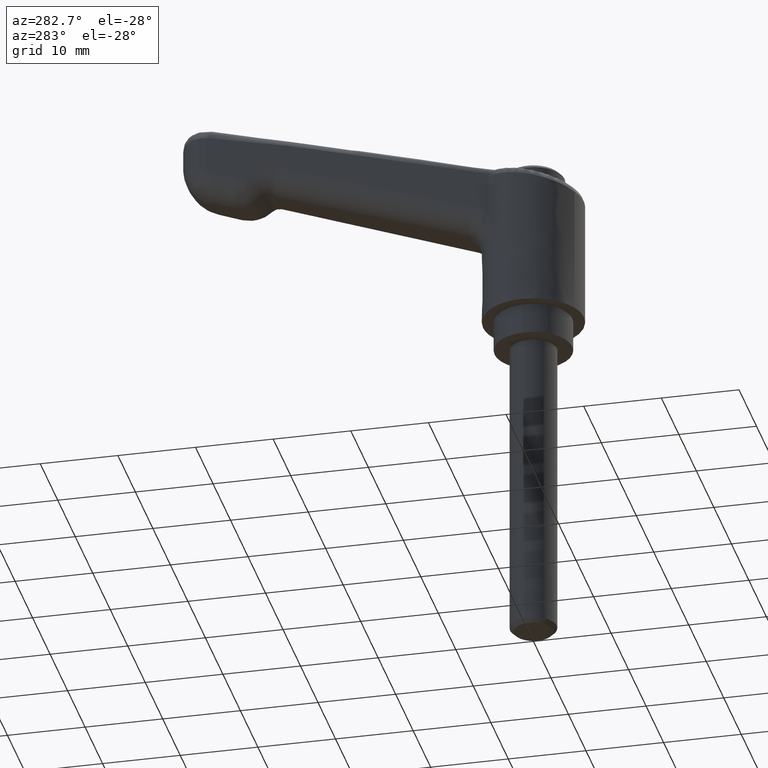
[diagram: clean part render]
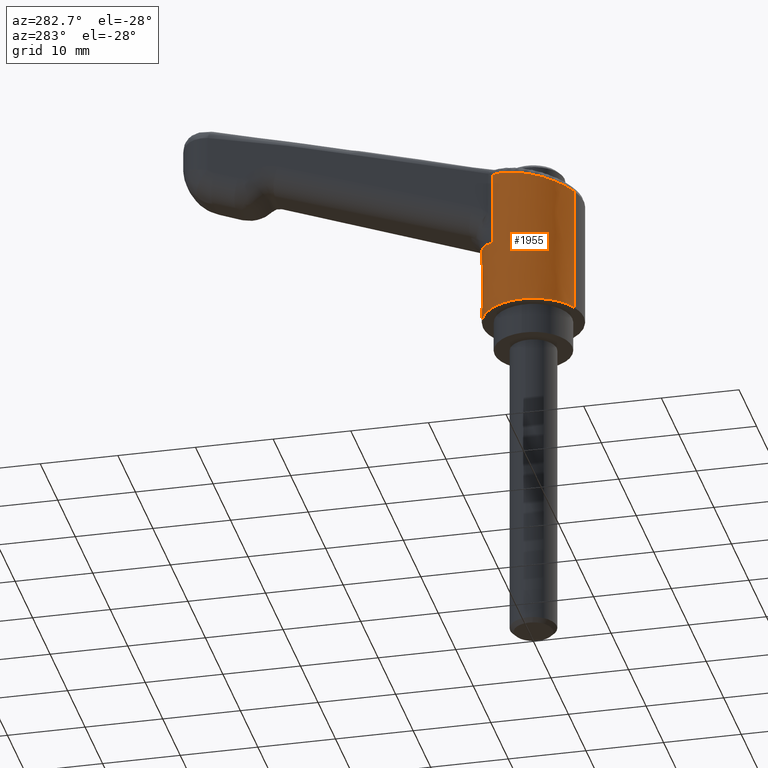
[diagram: same view with one face highlighted and labeled with its STEP entity id]
A machine part, auxiliary view. The second image highlights one B-rep face of the part: STEP entity #1955.
In plain terms, the highlighted face is a freeform B-spline surface patch.
Its self-contained STEP definition (entity closure, byte-faithful):
#1812=CARTESIAN_POINT('',(-5.914748260697529,2.695506077265552,23.400783769491071));
#1813=CARTESIAN_POINT('',(-3.219242183431977,8.610254337963081,23.400783769491078));
#1814=CARTESIAN_POINT('',(2.695506077265552,5.914748260697529,23.400783769491071));
#1815=CARTESIAN_POINT('',(8.610254337963081,3.219242183431977,23.400783769491078));
#1816=CARTESIAN_POINT('',(5.914748260697529,-2.695506077265552,23.400783769491071));
#1817=CARTESIAN_POINT('',(3.219242183431977,-8.610254337963081,23.400783769491078));
#1818=CARTESIAN_POINT('',(-2.695506077265552,-5.914748260697529,23.400783769491071));
#1819=CARTESIAN_POINT('',(-5.914748260697529,2.695506077265552,3.514980405762724));
#1820=CARTESIAN_POINT('',(-3.219242183431977,8.610254337963081,3.514980405762724));
#1821=CARTESIAN_POINT('',(2.695506077265552,5.914748260697529,3.514980405762724));
#1822=CARTESIAN_POINT('',(8.610254337963081,3.219242183431977,3.514980405762724));
#1823=CARTESIAN_POINT('',(5.914748260697529,-2.695506077265552,3.514980405762724));
#1824=CARTESIAN_POINT('',(3.219242183431977,-8.610254337963081,3.514980405762724));
#1825=CARTESIAN_POINT('',(-2.695506077265552,-5.914748260697529,3.514980405762724));
#1833=(BOUNDED_SURFACE()B_SPLINE_SURFACE(2,1,((#1812,#1819),(#1813,#1820),(#1814,#1821),(#1815,#1822),(#1816,#1823),(#1817,#1824),(#1818,#1825)),.UNSPECIFIED.,.F.,.F.,.U.)B_SPLINE_SURFACE_WITH_KNOTS((3,2,2,3),(2,2),(0.0,10.769552621700470,21.539105243400940,32.308657865101402),(0.0,19.885803363728350),.UNSPECIFIED.)GEOMETRIC_REPRESENTATION_ITEM()RATIONAL_B_SPLINE_SURFACE(((1.0,1.0),(0.707106781186548,0.707106781186548),(1.0,1.0),(0.707106781186548,0.707106781186548),(1.0,1.0),(0.707106781186548,0.707106781186548),(1.0,1.0)))REPRESENTATION_ITEM('')SURFACE());
#1834=CARTESIAN_POINT('',(-5.914549377455127,2.695415402290960,20.523462329197411));
#1835=VERTEX_POINT('',#1834);
#1836=CARTESIAN_POINT('',(4.181284398144875,4.976631469360600,22.927593921454701));
#1837=VERTEX_POINT('',#1836);
#1838=CARTESIAN_POINT('',(-5.914549377455127,2.695415402290960,20.523462329197411));
#1839=CARTESIAN_POINT('',(-5.767468709994789,3.018050032681049,20.558262812087339));
#1840=CARTESIAN_POINT('',(-5.301182019287443,3.853651795714690,20.668779228307841));
#1841=CARTESIAN_POINT('',(-4.206732189440376,5.079375608178806,20.933532965407728));
#1842=CARTESIAN_POINT('',(-2.814015380585587,5.926542746467091,21.256792115043400));
#1843=CARTESIAN_POINT('',(-0.987577848334026,6.523199363515083,21.711266700937738));
#1844=CARTESIAN_POINT('',(0.518911485796681,6.562515029084429,22.054976047597659));
#1845=CARTESIAN_POINT('',(1.794250847008617,6.257449203859983,22.359249025548280));
#1846=CARTESIAN_POINT('',(2.343493232298454,6.072421653768368,22.489192580688979));
#1847=CARTESIAN_POINT('',(2.848927994721092,5.851381513394752,22.609173933573960));
#1848=CARTESIAN_POINT('',(3.310269182823885,5.602640677292396,22.719054847962759));
#1849=CARTESIAN_POINT('',(3.726997584483854,5.332975164673110,22.818718920146711));
#1850=CARTESIAN_POINT('',(4.011130285577574,5.119872786720974,22.886882436381779));
#1851=CARTESIAN_POINT('',(4.156138781201793,4.998073743425447,22.921579422721091));
#1852=CARTESIAN_POINT('',(4.181284398144875,4.976631469360600,22.927593921454701));
#1853=B_SPLINE_CURVE_WITH_KNOTS('',3,(#1838,#1839,#1840,#1841,#1842,#1843,#1844,#1845,#1846,#1847,#1848,#1849,#1850,#1851,#1852),.UNSPECIFIED.,.F.,.U.,(4,1,1,1,1,1,1,1,1,1,1,1,4),(0.590929746980573,0.625689573868113,0.684593177289269,0.752063985464612,0.785550837866162,0.877717810244562,0.898032705466529,0.917397459694434,0.935812799731019,0.953279587977761,0.969798852578575,0.985371826641243,0.988662854138937),.UNSPECIFIED.);
#1854=EDGE_CURVE('',#1835,#1837,#1853,.T.);
#1855=ORIENTED_EDGE('',*,*,#1854,.T.);
#1856=CARTESIAN_POINT('',(4.181284398144875,4.976631469360600,13.157700573101801));
#1857=VERTEX_POINT('',#1856);
#1858=CARTESIAN_POINT('',(4.181284398144875,4.976631469360600,22.927593921454701));
#1859=CARTESIAN_POINT('',(4.181284398144875,4.976631469360600,13.157700573101801));
#1860=QUASI_UNIFORM_CURVE('',1,(#1858,#1859),.UNSPECIFIED.,.F.,.U.);
#1861=EDGE_CURVE('',#1837,#1857,#1860,.T.);
#1862=ORIENTED_EDGE('',*,*,#1861,.T.);
#1863=CARTESIAN_POINT('',(4.181284398144875,-4.976631469360600,13.157700573101801));
#1864=VERTEX_POINT('',#1863);
#1865=CARTESIAN_POINT('',(4.181284398144868,4.976631469360603,13.157700573101810));
#1866=CARTESIAN_POINT('',(6.499999999999996,3.028484529113573,14.224243801016479));
#1867=CARTESIAN_POINT('',(6.499999999999996,7.959941E-016,14.224243801016479));
#1868=CARTESIAN_POINT('',(6.499999999999996,-3.028484529113571,14.224243801016479));
#1869=CARTESIAN_POINT('',(4.181284398144872,-4.976631469360600,13.157700573101820));
#1877=(BOUNDED_CURVE()B_SPLINE_CURVE(2,(#1865,#1866,#1867,#1868,#1869),.UNSPECIFIED.,.F.,.U.)B_SPLINE_CURVE_WITH_KNOTS((3,2,3),(0.0,0.500000000000000,1.0),.UNSPECIFIED.)CURVE()GEOMETRIC_REPRESENTATION_ITEM()RATIONAL_B_SPLINE_CURVE((1.0,0.906442089377892,1.0,0.906442089377892,1.0))REPRESENTATION_ITEM(''));
#1878=EDGE_CURVE('',#1857,#1864,#1877,.T.);
#1879=ORIENTED_EDGE('',*,*,#1878,.T.);
#1880=CARTESIAN_POINT('',(4.181284398144875,-4.976631469360600,22.927593525127300));
#1881=VERTEX_POINT('',#1880);
#1882=CARTESIAN_POINT('',(4.181284398144875,-4.976631469360600,13.157700573101801));
#1883=CARTESIAN_POINT('',(4.181284398144875,-4.976631469360600,22.927593525127300));
#1884=QUASI_UNIFORM_CURVE('',1,(#1882,#1883),.UNSPECIFIED.,.F.,.U.);
#1885=EDGE_CURVE('',#1864,#1881,#1884,.T.);
#1886=ORIENTED_EDGE('',*,*,#1885,.T.);
#1887=CARTESIAN_POINT('',(-2.695512476938378,-5.914765310525878,21.289380024952852));
#1888=VERTEX_POINT('',#1887);
#1889=CARTESIAN_POINT('',(4.181284398144875,-4.976631469360600,22.927593525127300));
#1890=CARTESIAN_POINT('',(4.090702154850265,-5.053378178435955,22.905918263791008));
#1891=CARTESIAN_POINT('',(3.899519846976026,-5.204324874394157,22.860066988614602));
#1892=CARTESIAN_POINT('',(3.594591174289756,-5.420201626950793,22.787021189177679));
#1893=CARTESIAN_POINT('',(3.262692235999267,-5.626525155900386,22.707703611908940));
#1894=CARTESIAN_POINT('',(2.904133393788352,-5.820130650837180,22.622292078117450));
#1895=CARTESIAN_POINT('',(2.518726046743061,-5.997385070868498,22.530765628883099));
#1896=CARTESIAN_POINT('',(2.106811796597528,-6.154602889495299,22.433105206278402));
#1897=CARTESIAN_POINT('',(1.668916739738379,-6.287865385909345,22.329412402823650));
#1898=CARTESIAN_POINT('',(0.704775469981378,-6.507636025443151,22.099640482222139));
#1899=CARTESIAN_POINT('',(-0.573019085534677,-6.546654325501651,21.802538539095629));
#1900=CARTESIAN_POINT('',(-1.801454585564106,-6.266555267962660,21.510999240540912));
#1901=CARTESIAN_POINT('',(-2.411559984368332,-6.039669353817590,21.357719162218459));
#1902=CARTESIAN_POINT('',(-2.625726030908051,-5.946577705503771,21.306060068367412));
#1903=CARTESIAN_POINT('',(-2.695512476938378,-5.914765310525878,21.289380024952852));
#1904=B_SPLINE_CURVE_WITH_KNOTS('',3,(#1889,#1890,#1891,#1892,#1893,#1894,#1895,#1896,#1897,#1898,#1899,#1900,#1901,#1902,#1903),.UNSPECIFIED.,.F.,.U.,(4,1,1,1,1,1,1,1,1,1,1,1,4),(0.011339002814821,0.023162408093432,0.035602075254132,0.048614959416363,0.062201629669727,0.076362582625634,0.091098253527881,0.106409025298450,0.122295235960681,0.190526883254455,0.232580987687207,0.248311673399157,0.255996111147750),.UNSPECIFIED.);
#1905=EDGE_CURVE('',#1881,#1888,#1904,.T.);
#1906=ORIENTED_EDGE('',*,*,#1905,.T.);
#1907=CARTESIAN_POINT('',(-2.695506077277886,-5.914748260691910,4.0));
#1908=VERTEX_POINT('',#1907);
#1909=CARTESIAN_POINT('',(-2.695512476938378,-5.914765310525878,21.289380024952852));
#1910=CARTESIAN_POINT('',(-2.695506077277886,-5.914748260691910,4.0));
#1911=QUASI_UNIFORM_CURVE('',1,(#1909,#1910),.UNSPECIFIED.,.F.,.U.);
#1912=EDGE_CURVE('',#1888,#1908,#1911,.T.);
#1913=ORIENTED_EDGE('',*,*,#1912,.T.);
#1914=CARTESIAN_POINT('',(6.500000000000000,0.0,4.0));
#1915=VERTEX_POINT('',#1914);
#1916=CARTESIAN_POINT('',(-2.695506077277886,-5.914748260691910,4.0));
#1917=CARTESIAN_POINT('',(-1.411288343064467,-6.500000000000000,4.0));
#1918=CARTESIAN_POINT('',(0.0,-6.500000000000000,4.0));
#1919=CARTESIAN_POINT('',(6.500000000000000,-6.500000000000000,4.0));
#1920=CARTESIAN_POINT('',(6.500000000000000,0.0,4.0));
#1928=(BOUNDED_CURVE()B_SPLINE_CURVE(2,(#1916,#1917,#1918,#1919,#1920),.UNSPECIFIED.,.F.,.U.)B_SPLINE_CURVE_WITH_KNOTS((3,2,3),(0.179570116083883,0.250000000000000,0.500000000000000),.UNSPECIFIED.)CURVE()GEOMETRIC_REPRESENTATION_ITEM()RATIONAL_B_SPLINE_CURVE((0.881463982734100,0.917486258396603,1.0,0.707106781186547,1.0))REPRESENTATION_ITEM(''));
#1929=EDGE_CURVE('',#1908,#1915,#1928,.T.);
#1930=ORIENTED_EDGE('',*,*,#1929,.T.);
#1931=CARTESIAN_POINT('',(-5.914750474327626,2.695501219887058,4.0));
#1932=VERTEX_POINT('',#1931);
#1933=CARTESIAN_POINT('',(6.500000000000000,0.0,4.0));
#1934=CARTESIAN_POINT('',(6.500000000000000,6.500000000000000,4.0));
#1935=CARTESIAN_POINT('',(0.0,6.500000000000000,4.0));
#1936=CARTESIAN_POINT('',(-4.180944264353101,6.500000000000000,4.0));
#1937=CARTESIAN_POINT('',(-5.914750474327626,2.695501219887058,4.000000000000000));
#1945=(BOUNDED_CURVE()B_SPLINE_CURVE(2,(#1933,#1934,#1935,#1936,#1937),.UNSPECIFIED.,.F.,.U.)B_SPLINE_CURVE_WITH_KNOTS((3,2,3),(0.500000000000000,0.750000000000000,0.929570244050691),.UNSPECIFIED.)CURVE()GEOMETRIC_REPRESENTATION_ITEM()RATIONAL_B_SPLINE_CURVE((1.0,0.707106781186547,1.0,0.789620372867503,0.881464113634814))REPRESENTATION_ITEM(''));
#1946=EDGE_CURVE('',#1915,#1932,#1945,.T.);
#1947=ORIENTED_EDGE('',*,*,#1946,.T.);
#1948=CARTESIAN_POINT('',(-5.914549377455127,2.695415402290960,20.523462329197411));
#1949=CARTESIAN_POINT('',(-5.914750474327626,2.695501219887058,4.0));
#1950=QUASI_UNIFORM_CURVE('',1,(#1948,#1949),.UNSPECIFIED.,.F.,.U.);
#1951=EDGE_CURVE('',#1835,#1932,#1950,.T.);
#1952=ORIENTED_EDGE('',*,*,#1951,.F.);
#1953=EDGE_LOOP('',(#1855,#1862,#1879,#1886,#1906,#1913,#1930,#1947,#1952));
#1954=FACE_OUTER_BOUND('',#1953,.T.);
#1955=ADVANCED_FACE('',(#1954),#1833,.T.);